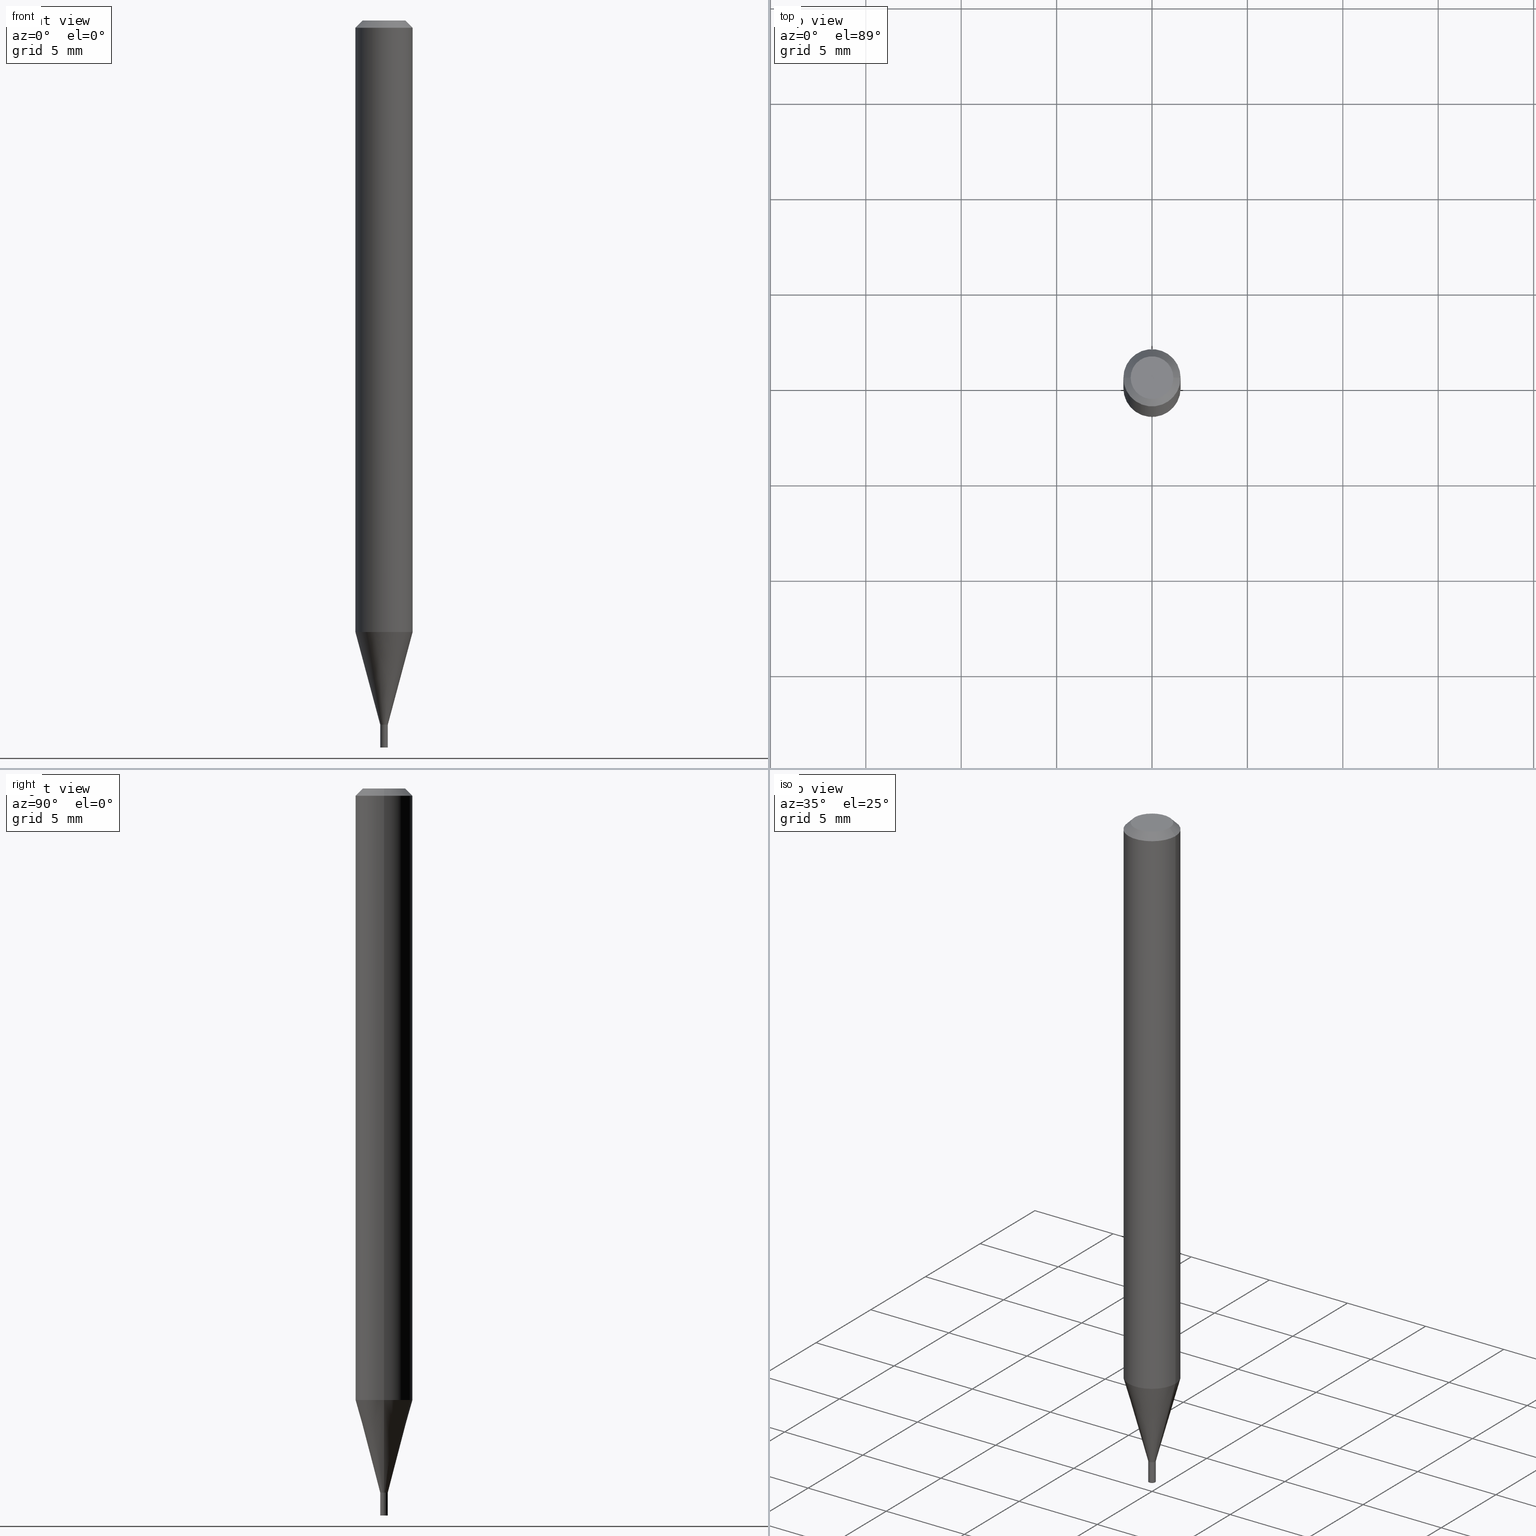
[diagram: canonical four-view strip — front | top / right | iso, engineering-drawing reading convention]
A machine part, canonical four-view strip (front | top / right | iso — engineering-drawing reading convention). The complete STEP part file that produces these views, byte-faithful:
ISO-10303-21;
HEADER;
FILE_DESCRIPTION (( 'STEP AP203' ),
    '1' );
FILE_NAME ('05093.STEP',
    '2024-03-14T17:50:11',
    ( '' ),
    ( '' ),
    'SwSTEP 2.0',
    'SolidWorks 2023',
    '' );
FILE_SCHEMA (( 'CONFIG_CONTROL_DESIGN' ));
ENDSEC;

DATA;
#1 = AXIS2_PLACEMENT_3D ( 'NONE', #158, #79, #304 ) ;
#2 = VECTOR ( 'NONE', #239, 39.37007874015748143 ) ;
#3 = APPROVAL_STATUS ( 'not_yet_approved' ) ;
#4 = EDGE_CURVE ( 'NONE', #89, #360, #392, .T. ) ;
#5 = VERTEX_POINT ( 'NONE', #264 ) ;
#6 = AXIS2_PLACEMENT_3D ( 'NONE', #301, #50, #116 ) ;
#7 = ORIENTED_EDGE ( 'NONE', *, *, #105, .F. ) ;
#8 = CARTESIAN_POINT ( 'NONE',  ( 0.000000000000000000, 0.000000000000000000, 0.000000000000000000 ) ) ;
#9 = EDGE_LOOP ( 'NONE', ( #288, #161, #404, #426 ) ) ;
#10 = DIRECTION ( 'NONE',  ( -0.7071067811865642261, 7.493145998870414114E-15, 0.7071067811865309194 ) ) ;
#11 = APPROVAL_DATE_TIME ( #384, #400 ) ;
#12 = AXIS2_PLACEMENT_3D ( 'NONE', #463, #167, #279 ) ;
#13 = CARTESIAN_POINT ( 'NONE',  ( -0.007349999999999998895, -5.017549970818845172E-15, -1.452800000000000091 ) ) ;
#14 = AXIS2_PLACEMENT_3D ( 'NONE', #193, #312, #385 ) ;
#15 = DIRECTION ( 'NONE',  ( 1.000000000000000000, -6.982962677686265922E-15, 4.888540261209747396E-29 ) ) ;
#16 =( NAMED_UNIT ( * ) SI_UNIT ( $, .STERADIAN. ) SOLID_ANGLE_UNIT ( ) );
#17 = DATE_TIME_ROLE ( 'classification_date' ) ;
#18 = CARTESIAN_POINT ( 'NONE',  ( 0.04404999999999999888, -3.798447818264462051E-16, -1.162416517208521811E-16 ) ) ;
#19 = CARTESIAN_POINT ( 'NONE',  ( -0.05904999999999999832, 3.599717260347268549E-16, -0.01499999999999999944 ) ) ;
#20 = ORIENTED_EDGE ( 'NONE', *, *, #108, .F. ) ;
#21 = DIRECTION ( 'NONE',  ( 2.438088387897960049E-29, -3.491481338843145188E-15, -1.000000000000000000 ) ) ;
#22 = AXIS2_PLACEMENT_3D ( 'NONE', #172, #322, #461 ) ;
#23 = EDGE_LOOP ( 'NONE', ( #438, #64, #259, #303 ) ) ;
#24 = LINE ( 'NONE', #210, #289 ) ;
#25 = CYLINDRICAL_SURFACE ( 'NONE', #362, 0.007849999999999999339 ) ;
#26 = CYLINDRICAL_SURFACE ( 'NONE', #334, 0.007849999999999921277 ) ;
#27 = CARTESIAN_POINT ( 'NONE',  ( 3.075995059520799729E-16, 0.04404999999999999888, -2.119205788364678519E-16 ) ) ;
#28 = CC_DESIGN_DATE_AND_TIME_ASSIGNMENT ( #168, #133, ( #298 ) ) ;
#29 = DIRECTION ( 'NONE',  ( -2.445468806185136877E-29, 3.491481338843145188E-15, 1.000000000000000000 ) ) ;
#30 = CLOSED_SHELL ( 'NONE', ( #250, #373, #310, #166, #117, #456, #231, #181, #388, #77, #424, #100 ) ) ;
#31 = LOCAL_TIME ( 13, 50, 11.00000000000000000, #314 ) ;
#32 = DIRECTION ( 'NONE',  ( 1.000000000000000000, -6.982962677686273021E-15, 0.000000000000000000 ) ) ;
#33 = DIRECTION ( 'NONE',  ( -2.445468806185136597E-29, 3.491481338843145583E-15, 1.000000000000000000 ) ) ;
#34 = EDGE_CURVE ( 'NONE', #233, #36, #205, .T. ) ;
#35 = COORDINATED_UNIVERSAL_TIME_OFFSET ( 5, 0, .BEHIND. ) ;
#36 = VERTEX_POINT ( 'NONE', #18 ) ;
#37 =( LENGTH_UNIT ( ) NAMED_UNIT ( * ) SI_UNIT ( $, .METRE. ) );
#38 = AXIS2_PLACEMENT_3D ( 'NONE', #41, #446, #76 ) ;
#39 = AXIS2_PLACEMENT_3D ( 'NONE', #265, #192, #376 ) ;
#40 = ORIENTED_EDGE ( 'NONE', *, *, #367, .T. ) ;
#41 = CARTESIAN_POINT ( 'NONE',  ( 3.552777081625766969E-29, -5.072424089071322718E-15, -1.452800000000000091 ) ) ;
#42 = DIRECTION ( 'NONE',  ( 2.445468806185136597E-29, -3.491481338843145583E-15, -1.000000000000000000 ) ) ;
#43 = APPROVAL ( #308, 'UNSPECIFIED' ) ;
#44 = ORIENTED_EDGE ( 'NONE', *, *, #144, .F. ) ;
#45 = CYLINDRICAL_SURFACE ( 'NONE', #6, 0.05904999999999999832 ) ;
#46 = CARTESIAN_POINT ( 'NONE',  ( 2.842653332627866660E-45, -4.058555577796679728E-31, -1.162416517208545723E-16 ) ) ;
#47 = APPROVAL_DATE_TIME ( #381, #43 ) ;
#48 = DIRECTION ( 'NONE',  ( -2.445468806185136597E-29, 3.491481338843145583E-15, 1.000000000000000000 ) ) ;
#49 = CC_DESIGN_PERSON_AND_ORGANIZATION_ASSIGNMENT ( #127, #207, ( #394 ) ) ;
#50 = DIRECTION ( 'NONE',  ( -2.445468806185136597E-29, 3.491481338843145583E-15, 1.000000000000000000 ) ) ;
#51 = CARTESIAN_POINT ( 'NONE',  ( 3.552777081625766969E-29, -5.072424089071322718E-15, -1.452800000000000091 ) ) ;
#52 = VERTEX_POINT ( 'NONE', #377 ) ;
#53 = AXIS2_PLACEMENT_3D ( 'NONE', #227, #407, #342 ) ;
#54 =( GEOMETRIC_REPRESENTATION_CONTEXT ( 3 ) GLOBAL_UNCERTAINTY_ASSIGNED_CONTEXT ( ( #419 ) ) GLOBAL_UNIT_ASSIGNED_CONTEXT ( ( #156, #448, #16 ) ) REPRESENTATION_CONTEXT ( 'NONE', 'WORKASPACE' ) );
#55 = AXIS2_PLACEMENT_3D ( 'NONE', #51, #348, #163 ) ;
#56 = DIRECTION ( 'NONE',  ( 1.000000000000000000, -6.982962677686327453E-15, 0.000000000000000000 ) ) ;
#57 = DIRECTION ( 'NONE',  ( -2.445468806185136597E-29, 3.491481338843145583E-15, 1.000000000000000000 ) ) ;
#58 = CARTESIAN_POINT ( 'NONE',  ( 3.552777081625766969E-29, -5.072424089071322718E-15, -1.452800000000000091 ) ) ;
#59 = CARTESIAN_POINT ( 'NONE',  ( -0.007849999999999999339, -5.099045443910852809E-15, -1.452800000000000091 ) ) ;
#60 = CARTESIAN_POINT ( 'NONE',  ( 3.668203209277704895E-29, -5.237222008264718177E-15, -1.500000000000000222 ) ) ;
#61 = AXIS2_PLACEMENT_3D ( 'NONE', #60, #57, #423 ) ;
#62 = CONICAL_SURFACE ( 'NONE', #285, 0.007349999999999998895, 0.7853981633974718157 ) ;
#63 = FACE_OUTER_BOUND ( 'NONE', #151, .T. ) ;
#64 = ORIENTED_EDGE ( 'NONE', *, *, #68, .T. ) ;
#65 = CC_DESIGN_PERSON_AND_ORGANIZATION_ASSIGNMENT ( #319, #88, ( #298 ) ) ;
#66 = DIRECTION ( 'NONE',  ( -2.445468806185136597E-29, 3.491481338843145583E-15, 1.000000000000000000 ) ) ;
#67 = VERTEX_POINT ( 'NONE', #345 ) ;
#68 = EDGE_CURVE ( 'NONE', #153, #157, #309, .T. ) ;
#69 = ORIENTED_EDGE ( 'NONE', *, *, #72, .F. ) ;
#70 = DIRECTION ( 'NONE',  ( 1.000000000000000000, -6.982962677686266711E-15, 4.876176775795935793E-29 ) ) ;
#71 = AXIS2_PLACEMENT_3D ( 'NONE', #80, #410, #347 ) ;
#72 = EDGE_CURVE ( 'NONE', #331, #67, #103, .T. ) ;
#73 = CARTESIAN_POINT ( 'NONE',  ( 0.007349999999999998895, -5.123748864752316500E-15, -1.452800000000000091 ) ) ;
#74 = ORIENTED_EDGE ( 'NONE', *, *, #432, .F. ) ;
#75 = PLANE ( 'NONE',  #429 ) ;
#76 = DIRECTION ( 'NONE',  ( 1.000000000000000000, -6.982962677686273021E-15, 0.000000000000000000 ) ) ;
#77 = ADVANCED_FACE ( 'NONE', ( #63 ), #245, .F. ) ;
#78 = CALENDAR_DATE ( 2024, 14, 3 ) ;
#79 = DIRECTION ( 'NONE',  ( -2.445468806185136597E-29, 3.491481338843145583E-15, 1.000000000000000000 ) ) ;
#80 = CARTESIAN_POINT ( 'NONE',  ( 3.668203209277705088E-31, -5.237222008264718399E-17, -0.01499999999999999944 ) ) ;
#81 = EDGE_CURVE ( 'NONE', #153, #67, #459, .T. ) ;
#82 = ORIENTED_EDGE ( 'NONE', *, *, #449, .T. ) ;
#83 = DIRECTION ( 'NONE',  ( 2.438088387897960049E-29, -3.491481338843145188E-15, -1.000000000000000000 ) ) ;
#84 = ORIENTED_EDGE ( 'NONE', *, *, #350, .T. ) ;
#85 = CONICAL_SURFACE ( 'NONE', #71, 0.05904999999999999832, 0.7853981633974522758 ) ;
#86 = DIRECTION ( 'NONE',  ( -2.445468806185136597E-29, 3.491481338843145583E-15, 1.000000000000000000 ) ) ;
#87 = CC_DESIGN_APPROVAL ( #43, ( #165 ) ) ;
#88 = PERSON_AND_ORGANIZATION_ROLE ( 'creator' ) ;
#89 = VERTEX_POINT ( 'NONE', #206 ) ;
#90 = PRODUCT_RELATED_PRODUCT_CATEGORY ( 'detail', '', ( #106 ) ) ;
#91 = CONICAL_SURFACE ( 'NONE', #328, 0.05904999999999999832, 0.7853981633974522758 ) ;
#92 = CIRCLE ( 'NONE', #199, 0.007849999999999999339 ) ;
#93 = DIRECTION ( 'NONE',  ( 0.7071067811865503483, -7.319954787623265512E-15, -0.7071067811865446862 ) ) ;
#94 = DIRECTION ( 'NONE',  ( -2.445468806185136877E-29, 3.491481338843145188E-15, 1.000000000000000000 ) ) ;
#95 = CALENDAR_DATE ( 2024, 14, 3 ) ;
#96 = EDGE_CURVE ( 'NONE', #440, #228, #251, .T. ) ;
#97 = CARTESIAN_POINT ( 'NONE',  ( 3.552777081625766969E-29, -5.072424089071322718E-15, -1.452800000000000091 ) ) ;
#98 = ADVANCED_FACE ( 'NONE', ( #427 ), #391, .T. ) ;
#99 = DIRECTION ( 'NONE',  ( 1.000000000000000000, -6.982962677686273021E-15, 0.000000000000000000 ) ) ;
#100 = ADVANCED_FACE ( 'NONE', ( #355 ), #26, .F. ) ;
#101 = ORIENTED_EDGE ( 'NONE', *, *, #432, .T. ) ;
#102 = CC_DESIGN_PERSON_AND_ORGANIZATION_ASSIGNMENT ( #124, #159, ( #165 ) ) ;
#103 = CIRCLE ( 'NONE', #197, 0.007849999999999921277 ) ;
#104 = DIRECTION ( 'NONE',  ( 1.000000000000000000, -6.982962677686327453E-15, 0.000000000000000000 ) ) ;
#105 = EDGE_CURVE ( 'NONE', #293, #331, #465, .T. ) ;
#106 = PRODUCT ( '05093', '05093', '', ( #232 ) ) ;
#107 = DIRECTION ( 'NONE',  ( -0.7071067811865503483, 2.468850131082286248E-15, -0.7071067811865446862 ) ) ;
#108 = EDGE_CURVE ( 'NONE', #36, #360, #131, .T. ) ;
#109 = ORIENTED_EDGE ( 'NONE', *, *, #4, .F. ) ;
#110 = CARTESIAN_POINT ( 'NONE',  ( -0.007849999999999999339, -5.099045443910852809E-15, -1.500000000000000222 ) ) ;
#111 = EDGE_LOOP ( 'NONE', ( #184, #374, #101, #286 ) ) ;
#112 = CIRCLE ( 'NONE', #164, 0.04404999999999999888 ) ;
#113 = ORIENTED_EDGE ( 'NONE', *, *, #115, .F. ) ;
#114 = LOCAL_TIME ( 13, 50, 11.00000000000000000, #238 ) ;
#115 = EDGE_CURVE ( 'NONE', #293, #214, #351, .T. ) ;
#116 = DIRECTION ( 'NONE',  ( 1.000000000000000000, -6.982962677686266711E-15, 4.876176775795936353E-29 ) ) ;
#117 = ADVANCED_FACE ( 'NONE', ( #281 ), #393, .T. ) ;
#118 = CARTESIAN_POINT ( 'NONE',  ( 0.007849999999999999339, -5.127240346091160296E-15, -1.452800000000000091 ) ) ;
#119 = CARTESIAN_POINT ( 'NONE',  ( -0.007849999999999999339, 5.577760475716785990E-17, -3.861364045850100522E-31 ) ) ;
#120 = APPROVAL_STATUS ( 'not_yet_approved' ) ;
#121 = LINE ( 'NONE', #416, #2 ) ;
#122 = VECTOR ( 'NONE', #93, 39.37007874015748143 ) ;
#123 = ORGANIZATION ( 'UNSPECIFIED', 'UNSPECIFIED', '' ) ;
#124 = PERSON_AND_ORGANIZATION ( #462, #123 ) ;
#125 = EDGE_CURVE ( 'NONE', #52, #360, #145, .T. ) ;
#126 = CARTESIAN_POINT ( 'NONE',  ( 3.668203209277704895E-29, -5.237222008264718177E-15, -1.500000000000000222 ) ) ;
#127 = PERSON_AND_ORGANIZATION ( #462, #123 ) ;
#128 = CC_DESIGN_PERSON_AND_ORGANIZATION_ASSIGNMENT ( #375, #439, ( #394 ) ) ;
#129 = PERSON_AND_ORGANIZATION ( #462, #123 ) ;
#130 = CARTESIAN_POINT ( 'NONE',  ( 3.552777081625766969E-29, -5.072424089071322718E-15, -1.452800000000000091 ) ) ;
#131 = LINE ( 'NONE', #282, #122 ) ;
#132 = VECTOR ( 'NONE', #138, 39.37007874015748143 ) ;
#133 = DATE_TIME_ROLE ( 'creation_date' ) ;
#134 = CARTESIAN_POINT ( 'NONE',  ( 0.000000000000000000, 0.000000000000000000, 0.000000000000000000 ) ) ;
#135 = DIRECTION ( 'NONE',  ( 0.7071067811865642261, -2.468850131082431399E-15, 0.7071067811865309194 ) ) ;
#136 = EDGE_CURVE ( 'NONE', #440, #300, #292, .T. ) ;
#137 = CARTESIAN_POINT ( 'NONE',  ( 0.007349999999999998895, -5.123748864752316500E-15, -1.452800000000000091 ) ) ;
#138 = DIRECTION ( 'NONE',  ( -2.445468806185136877E-29, 3.491481338843145188E-15, 1.000000000000000000 ) ) ;
#139 = CARTESIAN_POINT ( 'NONE',  ( 0.000000000000000000, 0.000000000000000000, 0.000000000000000000 ) ) ;
#140 = CIRCLE ( 'NONE', #302, 0.05904999999999999832 ) ;
#141 = CARTESIAN_POINT ( 'NONE',  ( -0.007349999999999998895, -5.020199197992955584E-15, -1.452800000000000091 ) ) ;
#142 = LENGTH_MEASURE_WITH_UNIT ( LENGTH_MEASURE( 0.02539999999999999897 ), #37 );
#143 = CARTESIAN_POINT ( 'NONE',  ( 0.007849999999999999339, -5.481625701983718421E-17, 3.827798768999809240E-31 ) ) ;
#144 = EDGE_CURVE ( 'NONE', #67, #331, #435, .T. ) ;
#145 = CIRCLE ( 'NONE', #183, 0.05904999999999999832 ) ;
#146 = EDGE_LOOP ( 'NONE', ( #361, #40, #225, #109 ) ) ;
#147 = EDGE_LOOP ( 'NONE', ( #198, #389 ) ) ;
#148 = EDGE_CURVE ( 'NONE', #157, #89, #369, .T. ) ;
#149 = ORIENTED_EDGE ( 'NONE', *, *, #323, .T. ) ;
#150 = CARTESIAN_POINT ( 'NONE',  ( 0.05904999999999999832, -4.647161662000212105E-16, -0.01499999999999999944 ) ) ;
#151 = EDGE_LOOP ( 'NONE', ( #113, #344 ) ) ;
#152 = FACE_OUTER_BOUND ( 'NONE', #9, .T. ) ;
#153 = VERTEX_POINT ( 'NONE', #412 ) ;
#154 = ORIENTED_EDGE ( 'NONE', *, *, #148, .F. ) ;
#155 = FACE_OUTER_BOUND ( 'NONE', #402, .T. ) ;
#156 =( CONVERSION_BASED_UNIT ( 'INCH', #142 ) LENGTH_UNIT ( ) NAMED_UNIT ( #383 ) );
#157 = VERTEX_POINT ( 'NONE', #405 ) ;
#158 = CARTESIAN_POINT ( 'NONE',  ( 2.842653332627866660E-45, -4.058555577796679728E-31, -1.162416517208545723E-16 ) ) ;
#159 = PERSON_AND_ORGANIZATION_ROLE ( 'classification_officer' ) ;
#160 = LINE ( 'NONE', #119, #176 ) ;
#161 = ORIENTED_EDGE ( 'NONE', *, *, #108, .T. ) ;
#162 = FACE_OUTER_BOUND ( 'NONE', #399, .T. ) ;
#163 = DIRECTION ( 'NONE',  ( 1.000000000000000000, -6.982962677686327453E-15, 0.000000000000000000 ) ) ;
#164 = AXIS2_PLACEMENT_3D ( 'NONE', #46, #200, #15 ) ;
#165 = SECURITY_CLASSIFICATION ( '', '', #196 ) ;
#166 = ADVANCED_FACE ( 'NONE', ( #295 ), #45, .T. ) ;
#167 = DIRECTION ( 'NONE',  ( -2.438088387897960049E-29, 3.491481338843145188E-15, 1.000000000000000000 ) ) ;
#168 = DATE_AND_TIME ( #170, #329 ) ;
#169 = DIRECTION ( 'NONE',  ( -2.445468806185136597E-29, 3.491481338843145583E-15, 1.000000000000000000 ) ) ;
#170 = CALENDAR_DATE ( 2024, 14, 3 ) ;
#171 = CARTESIAN_POINT ( 'NONE',  ( 3.552777081625766969E-29, -5.072424089071322718E-15, -1.452800000000000091 ) ) ;
#172 = CARTESIAN_POINT ( 'NONE',  ( 3.552777081625766969E-29, -5.072424089071322718E-15, -1.452800000000000091 ) ) ;
#173 = AXIS2_PLACEMENT_3D ( 'NONE', #352, #208, #211 ) ;
#174 = AXIS2_PLACEMENT_3D ( 'NONE', #130, #169, #317 ) ;
#175 = CARTESIAN_POINT ( 'NONE',  ( 0.05904999999999999832, -4.123439461173740327E-16, 2.879382386107500220E-30 ) ) ;
#176 = VECTOR ( 'NONE', #94, 39.37007874015748143 ) ;
#177 = CONICAL_SURFACE ( 'NONE', #315, 0.007849999999999921277, 0.2617993877991501295 ) ;
#178 = EDGE_CURVE ( 'NONE', #233, #52, #237, .T. ) ;
#179 = DIRECTION ( 'NONE',  ( -2.445468806185136597E-29, 3.491481338843145583E-15, 1.000000000000000000 ) ) ;
#180 = LINE ( 'NONE', #141, #445 ) ;
#181 = ADVANCED_FACE ( 'NONE', ( #162 ), #85, .T. ) ;
#182 = ORIENTED_EDGE ( 'NONE', *, *, #437, .F. ) ;
#183 = AXIS2_PLACEMENT_3D ( 'NONE', #222, #179, #330 ) ;
#184 = ORIENTED_EDGE ( 'NONE', *, *, #81, .F. ) ;
#185 = CC_DESIGN_SECURITY_CLASSIFICATION ( #165, ( #394 ) ) ;
#186 = DIRECTION ( 'NONE',  ( -2.445468806185136877E-29, 3.491481338843145188E-15, 1.000000000000000000 ) ) ;
#187 = ORIENTED_EDGE ( 'NONE', *, *, #136, .T. ) ;
#188 = APPROVAL_ROLE ( '' ) ;
#189 = CARTESIAN_POINT ( 'NONE',  ( 3.668203209277705088E-31, -5.237222008264718399E-17, -0.01499999999999999944 ) ) ;
#190 = EDGE_LOOP ( 'NONE', ( #447, #436 ) ) ;
#191 = CYLINDRICAL_SURFACE ( 'NONE', #39, 0.05904999999999999832 ) ;
#192 = DIRECTION ( 'NONE',  ( -2.445468806185136597E-29, 3.491481338843145583E-15, 1.000000000000000000 ) ) ;
#193 = CARTESIAN_POINT ( 'NONE',  ( 0.000000000000000000, 0.000000000000000000, 0.000000000000000000 ) ) ;
#194 = ORIENTED_EDGE ( 'NONE', *, *, #144, .T. ) ;
#195 = EDGE_CURVE ( 'NONE', #153, #5, #455, .T. ) ;
#196 = SECURITY_CLASSIFICATION_LEVEL ( 'unclassified' ) ;
#197 = AXIS2_PLACEMENT_3D ( 'NONE', #325, #395, #32 ) ;
#198 = ORIENTED_EDGE ( 'NONE', *, *, #96, .F. ) ;
#199 = AXIS2_PLACEMENT_3D ( 'NONE', #335, #297, #104 ) ;
#200 = DIRECTION ( 'NONE',  ( -2.445468806185136597E-29, 3.491481338843145583E-15, 1.000000000000000000 ) ) ;
#201 = DIRECTION ( 'NONE',  ( 1.000000000000000000, -6.982962677686273021E-15, 0.000000000000000000 ) ) ;
#202 = APPROVAL_ROLE ( '' ) ;
#203 = DIRECTION ( 'NONE',  ( -1.000000000000000000, 6.982962677686265922E-15, -4.876176775795935793E-29 ) ) ;
#204 = AXIS2_PLACEMENT_3D ( 'NONE', #269, #86, #267 ) ;
#205 = CIRCLE ( 'NONE', #1, 0.04404999999999999888 ) ;
#206 = CARTESIAN_POINT ( 'NONE',  ( 0.05904999999999999138, -4.817612284776347072E-15, -1.261718998652473944 ) ) ;
#207 = PERSON_AND_ORGANIZATION_ROLE ( 'creator' ) ;
#208 = DIRECTION ( 'NONE',  ( -2.445468806185136597E-29, 3.491481338843145583E-15, 1.000000000000000000 ) ) ;
#209 = APPROVAL_DATE_TIME ( #396, #221 ) ;
#210 = CARTESIAN_POINT ( 'NONE',  ( -0.05904999999999999832, 4.195754854663391478E-16, -2.904631170795521892E-30 ) ) ;
#211 = DIRECTION ( 'NONE',  ( 1.000000000000000000, -6.982962677686265922E-15, 4.876176775795935793E-29 ) ) ;
#212 = CC_DESIGN_APPROVAL ( #221, ( #298 ) ) ;
#213 = CARTESIAN_POINT ( 'NONE',  ( -0.007849999999999921277, 5.577760475716730523E-17, -3.861364045850062424E-31 ) ) ;
#214 = VERTEX_POINT ( 'NONE', #13 ) ;
#215 = ORIENTED_EDGE ( 'NONE', *, *, #367, .F. ) ;
#216 = EDGE_CURVE ( 'NONE', #360, #52, #140, .T. ) ;
#217 = DIRECTION ( 'NONE',  ( 1.000000000000000000, -6.982962677686261189E-15, 0.000000000000000000 ) ) ;
#218 = DIRECTION ( 'NONE',  ( -2.445468806185136597E-29, 3.491481338843145583E-15, 1.000000000000000000 ) ) ;
#219 = AXIS2_PLACEMENT_3D ( 'NONE', #27, #83, #203 ) ;
#220 = CIRCLE ( 'NONE', #262, 0.007349999999999998895 ) ;
#221 = APPROVAL ( #120, 'UNSPECIFIED' ) ;
#222 = CARTESIAN_POINT ( 'NONE',  ( 3.668203209277705088E-31, -5.237222008264718399E-17, -0.01499999999999999944 ) ) ;
#223 = DIRECTION ( 'NONE',  ( -2.445468806185136597E-29, 3.491481338843145583E-15, 1.000000000000000000 ) ) ;
#224 = AXIS2_PLACEMENT_3D ( 'NONE', #234, #223, #201 ) ;
#225 = ORIENTED_EDGE ( 'NONE', *, *, #216, .F. ) ;
#226 = ORIENTED_EDGE ( 'NONE', *, *, #466, .T. ) ;
#227 = CARTESIAN_POINT ( 'NONE',  ( 3.576687321579069994E-29, -5.368277968210015545E-15, -1.500000000000000222 ) ) ;
#228 = VERTEX_POINT ( 'NONE', #110 ) ;
#229 = EDGE_LOOP ( 'NONE', ( #371, #84, #69, #7 ) ) ;
#230 = FACE_OUTER_BOUND ( 'NONE', #147, .T. ) ;
#231 = ADVANCED_FACE ( 'NONE', ( #382 ), #191, .T. ) ;
#232 = MECHANICAL_CONTEXT ( 'NONE', #241, 'mechanical' ) ;
#233 = VERTEX_POINT ( 'NONE', #340 ) ;
#234 = CARTESIAN_POINT ( 'NONE',  ( 3.552777081625766969E-29, -5.072424089071322718E-15, -1.452800000000000091 ) ) ;
#235 = EDGE_CURVE ( 'NONE', #5, #153, #313, .T. ) ;
#236 = DIRECTION ( 'NONE',  ( -2.445468806185136877E-29, 3.491481338843145188E-15, 1.000000000000000000 ) ) ;
#237 = LINE ( 'NONE', #19, #260 ) ;
#238 = COORDINATED_UNIVERSAL_TIME_OFFSET ( 5, 0, .BEHIND. ) ;
#239 = DIRECTION ( 'NONE',  ( -2.445468806185136877E-29, 3.491481338843145188E-15, 1.000000000000000000 ) ) ;
#240 = ADVANCED_FACE ( 'NONE', ( #230 ), #442, .F. ) ;
#241 = APPLICATION_CONTEXT ( 'configuration controlled 3d designs of mechanical parts and assemblies' ) ;
#242 = ORIENTED_EDGE ( 'NONE', *, *, #125, .F. ) ;
#243 = AXIS2_PLACEMENT_3D ( 'NONE', #398, #218, #368 ) ;
#244 = EDGE_LOOP ( 'NONE', ( #417, #226, #320, #44 ) ) ;
#245 = PLANE ( 'NONE',  #12 ) ;
#246 = FACE_OUTER_BOUND ( 'NONE', #339, .T. ) ;
#247 = CARTESIAN_POINT ( 'NONE',  ( 0.007849999999999921277, -5.125494605421738004E-15, -1.452300000000000146 ) ) ;
#248 = DIRECTION ( 'NONE',  ( -2.445468806185136597E-29, 3.491481338843145583E-15, 1.000000000000000000 ) ) ;
#249 = ORIENTED_EDGE ( 'NONE', *, *, #125, .T. ) ;
#250 = ADVANCED_FACE ( 'NONE', ( #346 ), #257, .F. ) ;
#251 = CIRCLE ( 'NONE', #61, 0.007849999999999999339 ) ;
#252 = CARTESIAN_POINT ( 'NONE',  ( 3.552777081625766969E-29, -5.072424089071322718E-15, -1.452800000000000091 ) ) ;
#253 = ORIENTED_EDGE ( 'NONE', *, *, #136, .F. ) ;
#254 = DESIGN_CONTEXT ( 'detailed design', #283, 'design' ) ;
#255 = AXIS2_PLACEMENT_3D ( 'NONE', #8, #338, #70 ) ;
#256 = ORIENTED_EDGE ( 'NONE', *, *, #34, .T. ) ;
#257 = CYLINDRICAL_SURFACE ( 'NONE', #255, 0.007849999999999921277 ) ;
#258 = LINE ( 'NONE', #305, #379 ) ;
#259 = ORIENTED_EDGE ( 'NONE', *, *, #364, .F. ) ;
#260 = VECTOR ( 'NONE', #107, 39.37007874015748143 ) ;
#261 = AXIS2_PLACEMENT_3D ( 'NONE', #126, #431, #56 ) ;
#262 = AXIS2_PLACEMENT_3D ( 'NONE', #252, #66, #217 ) ;
#263 = DIRECTION ( 'NONE',  ( 1.000000000000000000, -6.982962677686273021E-15, 0.000000000000000000 ) ) ;
#264 = CARTESIAN_POINT ( 'NONE',  ( 0.007849999999999921277, -5.127240346091159508E-15, -1.452800000000000091 ) ) ;
#265 = CARTESIAN_POINT ( 'NONE',  ( 0.000000000000000000, 0.000000000000000000, 0.000000000000000000 ) ) ;
#266 = PERSON_AND_ORGANIZATION ( #462, #123 ) ;
#267 = DIRECTION ( 'NONE',  ( 1.000000000000000000, -6.982962677686273021E-15, 0.000000000000000000 ) ) ;
#268 = DIRECTION ( 'NONE',  ( 1.000000000000000000, -6.982962677686261189E-15, 0.000000000000000000 ) ) ;
#269 = CARTESIAN_POINT ( 'NONE',  ( 3.085494453375771234E-29, -4.405268338658972941E-15, -1.261718998652473944 ) ) ;
#270 = SHAPE_DEFINITION_REPRESENTATION ( #287, #366 ) ;
#271 = VECTOR ( 'NONE', #29, 39.37007874015748143 ) ;
#272 = ORIENTED_EDGE ( 'NONE', *, *, #81, .T. ) ;
#273 = LOCAL_TIME ( 13, 50, 11.00000000000000000, #35 ) ;
#274 = CALENDAR_DATE ( 2024, 14, 3 ) ;
#275 = MANIFOLD_SOLID_BREP ( 'Body-Move/Copy2[1]', #415 ) ;
#276 = PLANE ( 'NONE',  #219 ) ;
#277 = CALENDAR_DATE ( 2024, 14, 3 ) ;
#278 = VECTOR ( 'NONE', #458, 39.37007874015747433 ) ;
#279 = DIRECTION ( 'NONE',  ( 1.000000000000000000, -6.982962677686265922E-15, 4.876176775795935793E-29 ) ) ;
#280 = EDGE_CURVE ( 'NONE', #5, #89, #258, .T. ) ;
#281 = FACE_OUTER_BOUND ( 'NONE', #23, .T. ) ;
#282 = CARTESIAN_POINT ( 'NONE',  ( 0.05904999999999999832, -4.574846268510561447E-16, -0.01499999999999999944 ) ) ;
#283 = APPLICATION_CONTEXT ( 'configuration controlled 3d designs of mechanical parts and assemblies' ) ;
#284 = AXIS2_PLACEMENT_3D ( 'NONE', #97, #248, #99 ) ;
#285 = AXIS2_PLACEMENT_3D ( 'NONE', #171, #48, #268 ) ;
#286 = ORIENTED_EDGE ( 'NONE', *, *, #72, .T. ) ;
#287 = PRODUCT_DEFINITION_SHAPE ( 'NONE', 'NONE',  #298 ) ;
#288 = ORIENTED_EDGE ( 'NONE', *, *, #316, .F. ) ;
#289 = VECTOR ( 'NONE', #236, 39.37007874015748143 ) ;
#290 = APPROVAL_PERSON_ORGANIZATION ( #266, #43, #452 ) ;
#291 = DIRECTION ( 'NONE',  ( 1.000000000000000000, -6.982962677686265922E-15, 4.876176775795935793E-29 ) ) ;
#292 = LINE ( 'NONE', #143, #343 ) ;
#293 = VERTEX_POINT ( 'NONE', #73 ) ;
#294 = DIRECTION ( 'NONE',  ( -2.445468806185136597E-29, 3.491481338843145583E-15, 1.000000000000000000 ) ) ;
#295 = FACE_OUTER_BOUND ( 'NONE', #146, .T. ) ;
#296 = ORIENTED_EDGE ( 'NONE', *, *, #464, .F. ) ;
#297 = DIRECTION ( 'NONE',  ( -2.445468806185136597E-29, 3.491481338843145583E-15, 1.000000000000000000 ) ) ;
#298 = PRODUCT_DEFINITION ( 'UNKNOWN', '', #394, #254 ) ;
#299 = CARTESIAN_POINT ( 'NONE',  ( 3.085494453375771234E-29, -4.405268338658972941E-15, -1.261718998652473944 ) ) ;
#300 = VERTEX_POINT ( 'NONE', #118 ) ;
#301 = CARTESIAN_POINT ( 'NONE',  ( 0.000000000000000000, 0.000000000000000000, 0.000000000000000000 ) ) ;
#302 = AXIS2_PLACEMENT_3D ( 'NONE', #189, #311, #441 ) ;
#303 = ORIENTED_EDGE ( 'NONE', *, *, #280, .F. ) ;
#304 = DIRECTION ( 'NONE',  ( 1.000000000000000000, -6.982962677686265922E-15, 4.888540261209747396E-29 ) ) ;
#305 = CARTESIAN_POINT ( 'NONE',  ( 0.007849999999999921277, -5.127240346091159508E-15, -1.452800000000000091 ) ) ;
#306 = ORIENTED_EDGE ( 'NONE', *, *, #148, .T. ) ;
#307 = PERSON_AND_ORGANIZATION ( #462, #123 ) ;
#308 = APPROVAL_STATUS ( 'not_yet_approved' ) ;
#309 = LINE ( 'NONE', #349, #278 ) ;
#310 = ADVANCED_FACE ( 'NONE', ( #152 ), #91, .T. ) ;
#311 = DIRECTION ( 'NONE',  ( -2.445468806185136597E-29, 3.491481338843145583E-15, 1.000000000000000000 ) ) ;
#312 = DIRECTION ( 'NONE',  ( 0.000000000000000000, 0.000000000000000000, 1.000000000000000000 ) ) ;
#313 = CIRCLE ( 'NONE', #224, 0.007849999999999921277 ) ;
#314 = COORDINATED_UNIVERSAL_TIME_OFFSET ( 5, 0, .BEHIND. ) ;
#315 = AXIS2_PLACEMENT_3D ( 'NONE', #58, #332, #397 ) ;
#316 = EDGE_CURVE ( 'NONE', #36, #233, #112, .T. ) ;
#317 = DIRECTION ( 'NONE',  ( 1.000000000000000000, -6.982962677686261189E-15, 0.000000000000000000 ) ) ;
#318 = DIRECTION ( 'NONE',  ( 1.000000000000000000, -6.982962677686266711E-15, 4.876176775795935793E-29 ) ) ;
#319 = PERSON_AND_ORGANIZATION ( #462, #123 ) ;
#320 = ORIENTED_EDGE ( 'NONE', *, *, #105, .T. ) ;
#321 = CIRCLE ( 'NONE', #422, 0.05904999999999999832 ) ;
#322 = DIRECTION ( 'NONE',  ( -2.445468806185136597E-29, 3.491481338843145583E-15, 1.000000000000000000 ) ) ;
#323 = EDGE_CURVE ( 'NONE', #228, #333, #160, .T. ) ;
#324 = ORIENTED_EDGE ( 'NONE', *, *, #68, .F. ) ;
#325 = CARTESIAN_POINT ( 'NONE',  ( 3.551554347222674728E-29, -5.070678348401901214E-15, -1.452300000000000146 ) ) ;
#326 = ORIENTED_EDGE ( 'NONE', *, *, #195, .F. ) ;
#327 = ORIENTED_EDGE ( 'NONE', *, *, #96, .T. ) ;
#328 = AXIS2_PLACEMENT_3D ( 'NONE', #372, #42, #378 ) ;
#329 = LOCAL_TIME ( 13, 50, 11.00000000000000000, #353 ) ;
#330 = DIRECTION ( 'NONE',  ( 1.000000000000000000, -6.982962677686266711E-15, 0.000000000000000000 ) ) ;
#331 = VERTEX_POINT ( 'NONE', #247 ) ;
#332 = DIRECTION ( 'NONE',  ( -2.445468806185136597E-29, 3.491481338843145583E-15, 1.000000000000000000 ) ) ;
#333 = VERTEX_POINT ( 'NONE', #59 ) ;
#334 = AXIS2_PLACEMENT_3D ( 'NONE', #139, #357, #318 ) ;
#335 = CARTESIAN_POINT ( 'NONE',  ( 3.552777081625766969E-29, -5.072424089071322718E-15, -1.452800000000000091 ) ) ;
#336 = CIRCLE ( 'NONE', #55, 0.007849999999999999339 ) ;
#337 = ORIENTED_EDGE ( 'NONE', *, *, #178, .T. ) ;
#338 = DIRECTION ( 'NONE',  ( -2.445468806185136597E-29, 3.491481338843145583E-15, 1.000000000000000000 ) ) ;
#339 = EDGE_LOOP ( 'NONE', ( #324, #425, #414, #154 ) ) ;
#340 = CARTESIAN_POINT ( 'NONE',  ( -0.04404999999999999888, 3.337856159934032167E-16, -1.162416517208568157E-16 ) ) ;
#341 = ORIENTED_EDGE ( 'NONE', *, *, #4, .T. ) ;
#342 = DIRECTION ( 'NONE',  ( 1.000000000000000000, -6.982962677686265922E-15, 4.876176775795935793E-29 ) ) ;
#343 = VECTOR ( 'NONE', #186, 39.37007874015748143 ) ;
#344 = ORIENTED_EDGE ( 'NONE', *, *, #466, .F. ) ;
#345 = CARTESIAN_POINT ( 'NONE',  ( -0.007849999999999921277, -5.014900743644734759E-15, -1.452300000000000146 ) ) ;
#346 = FACE_OUTER_BOUND ( 'NONE', #443, .T. ) ;
#347 = DIRECTION ( 'NONE',  ( -1.000000000000000000, 6.982962677686266711E-15, 0.000000000000000000 ) ) ;
#348 = DIRECTION ( 'NONE',  ( -2.445468806185136597E-29, 3.491481338843145583E-15, 1.000000000000000000 ) ) ;
#349 = CARTESIAN_POINT ( 'NONE',  ( -0.007849999999999921277, -5.016646484314155474E-15, -1.452800000000000091 ) ) ;
#350 = EDGE_CURVE ( 'NONE', #214, #67, #180, .T. ) ;
#351 = CIRCLE ( 'NONE', #22, 0.007349999999999998895 ) ;
#352 = CARTESIAN_POINT ( 'NONE',  ( 0.000000000000000000, 0.000000000000000000, 0.000000000000000000 ) ) ;
#353 = COORDINATED_UNIVERSAL_TIME_OFFSET ( 5, 0, .BEHIND. ) ;
#354 = ADVANCED_FACE ( 'NONE', ( #155 ), #25, .T. ) ;
#355 = FACE_OUTER_BOUND ( 'NONE', #111, .T. ) ;
#356 = FACE_OUTER_BOUND ( 'NONE', #244, .T. ) ;
#357 = DIRECTION ( 'NONE',  ( -2.445468806185136597E-29, 3.491481338843145583E-15, 1.000000000000000000 ) ) ;
#358 = CONICAL_SURFACE ( 'NONE', #174, 0.007349999999999998895, 0.7853981633974718157 ) ;
#359 = CC_DESIGN_DATE_AND_TIME_ASSIGNMENT ( #420, #17, ( #165 ) ) ;
#360 = VERTEX_POINT ( 'NONE', #150 ) ;
#361 = ORIENTED_EDGE ( 'NONE', *, *, #364, .T. ) ;
#362 = AXIS2_PLACEMENT_3D ( 'NONE', #134, #33, #291 ) ;
#363 = EDGE_LOOP ( 'NONE', ( #215, #306, #341, #242 ) ) ;
#364 = EDGE_CURVE ( 'NONE', #89, #157, #321, .T. ) ;
#365 = ADVANCED_FACE ( 'NONE', ( #408 ), #75, .F. ) ;
#366 = ADVANCED_BREP_SHAPE_REPRESENTATION ( '05093', ( #275, #434, #14 ), #54 ) ;
#367 = EDGE_CURVE ( 'NONE', #157, #52, #24, .T. ) ;
#368 = DIRECTION ( 'NONE',  ( 1.000000000000000000, -6.982962677686273021E-15, 0.000000000000000000 ) ) ;
#369 = CIRCLE ( 'NONE', #204, 0.05904999999999999832 ) ;
#370 = CC_DESIGN_APPROVAL ( #400, ( #394 ) ) ;
#371 = ORIENTED_EDGE ( 'NONE', *, *, #115, .T. ) ;
#372 = CARTESIAN_POINT ( 'NONE',  ( 3.668203209277705088E-31, -5.237222008264718399E-17, -0.01499999999999999944 ) ) ;
#373 = ADVANCED_FACE ( 'NONE', ( #454 ), #358, .T. ) ;
#374 = ORIENTED_EDGE ( 'NONE', *, *, #235, .F. ) ;
#375 = PERSON_AND_ORGANIZATION ( #462, #123 ) ;
#376 = DIRECTION ( 'NONE',  ( 1.000000000000000000, -6.982962677686266711E-15, 4.876176775795936353E-29 ) ) ;
#377 = CARTESIAN_POINT ( 'NONE',  ( -0.05904999999999999832, -1.809244793904471109E-15, -0.01499999999999999944 ) ) ;
#378 = DIRECTION ( 'NONE',  ( -1.000000000000000000, 6.982962677686266711E-15, 0.000000000000000000 ) ) ;
#379 = VECTOR ( 'NONE', #450, 39.37007874015747433 ) ;
#380 = APPROVAL_PERSON_ORGANIZATION ( #129, #400, #188 ) ;
#381 = DATE_AND_TIME ( #78, #460 ) ;
#382 = FACE_OUTER_BOUND ( 'NONE', #363, .T. ) ;
#383 = DIMENSIONAL_EXPONENTS ( 1.000000000000000000, 0.000000000000000000, 0.000000000000000000, 0.000000000000000000, 0.000000000000000000, 0.000000000000000000, 0.000000000000000000 ) ;
#384 = DATE_AND_TIME ( #277, #31 ) ;
#385 = DIRECTION ( 'NONE',  ( 1.000000000000000000, 0.000000000000000000, 0.000000000000000000 ) ) ;
#386 = CC_DESIGN_PERSON_AND_ORGANIZATION_ASSIGNMENT ( #307, #451, ( #106 ) ) ;
#387 = CARTESIAN_POINT ( 'NONE',  ( 5.481625701987270760E-17, 0.007849999999994927008, -1.452800000000000091 ) ) ;
#388 = ADVANCED_FACE ( 'NONE', ( #421 ), #276, .F. ) ;
#389 = ORIENTED_EDGE ( 'NONE', *, *, #449, .F. ) ;
#390 = DIRECTION ( 'NONE',  ( -1.000000000000000000, 6.982962677686265922E-15, -4.876176775795935793E-29 ) ) ;
#391 = CYLINDRICAL_SURFACE ( 'NONE', #173, 0.007849999999999999339 ) ;
#392 = LINE ( 'NONE', #175, #132 ) ;
#393 = CONICAL_SURFACE ( 'NONE', #284, 0.007849999999999921277, 0.2617993877991501295 ) ;
#394 = PRODUCT_DEFINITION_FORMATION_WITH_SPECIFIED_SOURCE ( 'ANY', '', #106, .NOT_KNOWN. ) ;
#395 = DIRECTION ( 'NONE',  ( -2.445468806185136597E-29, 3.491481338843145583E-15, 1.000000000000000000 ) ) ;
#396 = DATE_AND_TIME ( #95, #273 ) ;
#397 = DIRECTION ( 'NONE',  ( 1.000000000000000000, -6.982962677686273021E-15, 0.000000000000000000 ) ) ;
#398 = CARTESIAN_POINT ( 'NONE',  ( 3.551554347222674728E-29, -5.070678348401901214E-15, -1.452300000000000146 ) ) ;
#399 = EDGE_LOOP ( 'NONE', ( #20, #409, #337, #249 ) ) ;
#400 = APPROVAL ( #3, 'UNSPECIFIED' ) ;
#401 = VECTOR ( 'NONE', #135, 39.37007874015748143 ) ;
#402 = EDGE_LOOP ( 'NONE', ( #444, #82, #187, #296 ) ) ;
#403 = APPROVAL_PERSON_ORGANIZATION ( #453, #221, #202 ) ;
#404 = ORIENTED_EDGE ( 'NONE', *, *, #216, .T. ) ;
#405 = CARTESIAN_POINT ( 'NONE',  ( -0.05904999999999999138, -3.985692853192634237E-15, -1.261718998652473944 ) ) ;
#406 = EDGE_LOOP ( 'NONE', ( #256, #428 ) ) ;
#407 = DIRECTION ( 'NONE',  ( -2.438088387897960049E-29, 3.491481338843145188E-15, 1.000000000000000000 ) ) ;
#408 = FACE_OUTER_BOUND ( 'NONE', #190, .T. ) ;
#409 = ORIENTED_EDGE ( 'NONE', *, *, #34, .F. ) ;
#410 = DIRECTION ( 'NONE',  ( 2.445468806185136597E-29, -3.491481338843145583E-15, -1.000000000000000000 ) ) ;
#411 = COORDINATED_UNIVERSAL_TIME_OFFSET ( 5, 0, .BEHIND. ) ;
#412 = CARTESIAN_POINT ( 'NONE',  ( -0.007849999999999921277, -4.501169668753394461E-15, -1.452800000000000091 ) ) ;
#413 = APPLICATION_PROTOCOL_DEFINITION ( 'international standard', 'config_control_design', 1994, #283 ) ;
#414 = ORIENTED_EDGE ( 'NONE', *, *, #280, .T. ) ;
#415 = CLOSED_SHELL ( 'NONE', ( #98, #240, #354, #365 ) ) ;
#416 = CARTESIAN_POINT ( 'NONE',  ( 0.007849999999999921277, -5.481625701983664187E-17, 3.827798768999771142E-31 ) ) ;
#417 = ORIENTED_EDGE ( 'NONE', *, *, #350, .F. ) ;
#418 = APPLICATION_PROTOCOL_DEFINITION ( 'international standard', 'config_control_design', 1994, #241 ) ;
#419 = UNCERTAINTY_MEASURE_WITH_UNIT (LENGTH_MEASURE( 1.000000000000000082E-05 ), #156, 'distance_accuracy_value', 'NONE');
#420 = DATE_AND_TIME ( #274, #114 ) ;
#421 = FACE_OUTER_BOUND ( 'NONE', #406, .T. ) ;
#422 = AXIS2_PLACEMENT_3D ( 'NONE', #299, #294, #263 ) ;
#423 = DIRECTION ( 'NONE',  ( 1.000000000000000000, -6.982962677686327453E-15, 0.000000000000000000 ) ) ;
#424 = ADVANCED_FACE ( 'NONE', ( #356 ), #62, .T. ) ;
#425 = ORIENTED_EDGE ( 'NONE', *, *, #195, .T. ) ;
#426 = ORIENTED_EDGE ( 'NONE', *, *, #178, .F. ) ;
#427 = FACE_OUTER_BOUND ( 'NONE', #433, .T. ) ;
#428 = ORIENTED_EDGE ( 'NONE', *, *, #316, .T. ) ;
#429 = AXIS2_PLACEMENT_3D ( 'NONE', #387, #21, #390 ) ;
#430 = CIRCLE ( 'NONE', #261, 0.007849999999999999339 ) ;
#431 = DIRECTION ( 'NONE',  ( -2.445468806185136597E-29, 3.491481338843145583E-15, 1.000000000000000000 ) ) ;
#432 = EDGE_CURVE ( 'NONE', #5, #331, #121, .T. ) ;
#433 = EDGE_LOOP ( 'NONE', ( #327, #149, #182, #253 ) ) ;
#434 = MANIFOLD_SOLID_BREP ( 'Body-Move/Copy2[2]', #30 ) ;
#435 = CIRCLE ( 'NONE', #243, 0.007849999999999921277 ) ;
#436 = ORIENTED_EDGE ( 'NONE', *, *, #464, .T. ) ;
#437 = EDGE_CURVE ( 'NONE', #300, #333, #336, .T. ) ;
#438 = ORIENTED_EDGE ( 'NONE', *, *, #235, .T. ) ;
#439 = PERSON_AND_ORGANIZATION_ROLE ( 'design_supplier' ) ;
#440 = VERTEX_POINT ( 'NONE', #457 ) ;
#441 = DIRECTION ( 'NONE',  ( 1.000000000000000000, -6.982962677686266711E-15, 0.000000000000000000 ) ) ;
#442 = PLANE ( 'NONE',  #53 ) ;
#443 = EDGE_LOOP ( 'NONE', ( #326, #272, #194, #74 ) ) ;
#444 = ORIENTED_EDGE ( 'NONE', *, *, #323, .F. ) ;
#445 = VECTOR ( 'NONE', #10, 39.37007874015748143 ) ;
#446 = DIRECTION ( 'NONE',  ( -2.445468806185136597E-29, 3.491481338843145583E-15, 1.000000000000000000 ) ) ;
#447 = ORIENTED_EDGE ( 'NONE', *, *, #437, .T. ) ;
#448 =( NAMED_UNIT ( * ) PLANE_ANGLE_UNIT ( ) SI_UNIT ( $, .RADIAN. ) );
#449 = EDGE_CURVE ( 'NONE', #228, #440, #430, .T. ) ;
#450 = DIRECTION ( 'NONE',  ( 0.2588190451025214611, 1.565188264969621573E-15, 0.9659258262890682012 ) ) ;
#451 = PERSON_AND_ORGANIZATION_ROLE ( 'design_owner' ) ;
#452 = APPROVAL_ROLE ( '' ) ;
#453 = PERSON_AND_ORGANIZATION ( #462, #123 ) ;
#454 = FACE_OUTER_BOUND ( 'NONE', #229, .T. ) ;
#455 = CIRCLE ( 'NONE', #38, 0.007849999999999921277 ) ;
#456 = ADVANCED_FACE ( 'NONE', ( #246 ), #177, .T. ) ;
#457 = CARTESIAN_POINT ( 'NONE',  ( 0.007849999999999999339, -5.292038265284556544E-15, -1.500000000000000222 ) ) ;
#458 = DIRECTION ( 'NONE',  ( -0.2588190451025214611, 5.211531920934551042E-15, 0.9659258262890682012 ) ) ;
#459 = LINE ( 'NONE', #213, #271 ) ;
#460 = LOCAL_TIME ( 13, 50, 11.00000000000000000, #411 ) ;
#461 = DIRECTION ( 'NONE',  ( 1.000000000000000000, -6.982962677686261189E-15, 0.000000000000000000 ) ) ;
#462 = PERSON ( 'UNSPECIFIED', 'UNSPECIFIED', 'UNSPECIFIED', ('UNSPECIFIED'), ('UNSPECIFIED'), ('UNSPECIFIED') ) ;
#463 = CARTESIAN_POINT ( 'NONE',  ( 3.552777081625766969E-29, -5.072424089071322718E-15, -1.452800000000000091 ) ) ;
#464 = EDGE_CURVE ( 'NONE', #333, #300, #92, .T. ) ;
#465 = LINE ( 'NONE', #137, #401 ) ;
#466 = EDGE_CURVE ( 'NONE', #214, #293, #220, .T. ) ;
ENDSEC;
END-ISO-10303-21;
